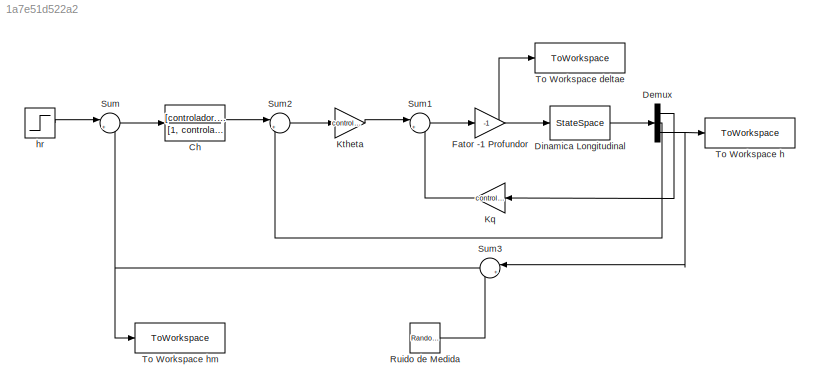
MODEL slx_1a7e51d522a2
KIND model
CONFIG AbsTol = auto
CONFIG EnableMultiTasking = off
CONFIG FixedStep = 1e-3
CONFIG MaxStep = auto
CONFIG MinStep = auto
CONFIG RelTol = 1e-3
CONFIG SampleTimeConstraint = Unconstrained
CONFIG SolverName = FixedStepAuto
CONFIG StartTime = 0.0
CONFIG StopTime = 30
BLOCK [TransferFcn] Ch
  Denominator = [1,  controlador.a]
  Numerator = [controlador.Kph + controlador.Kdh * controlador.a, controlador.Kph * controlador.a]
BLOCK [Demux] Demux
  Outputs = 3
BLOCK [StateSpace] Dinamica Longitudinal
  A = planta.A
  B = planta.B
  C = planta.C
  D = planta.D
  InitialCondition = 0
BLOCK [Gain] Fator -1 Profundor
  Gain = -1
BLOCK [Gain] Kq
  Gain = controlador.Kq
BLOCK [Gain] Ktheta
  Gain = controlador.Ktheta
BLOCK [RandomNumber] Ruido de Medida
  SampleTime = 1.0 / 100.0
  Variance = varh
BLOCK [Sum] Sum
  Inputs = |+-
BLOCK [Sum] Sum1
  Inputs = |+-
BLOCK [Sum] Sum2
  Inputs = |+-
BLOCK [Sum] Sum3
  Inputs = |++
  NameLocation = top
BLOCK [ToWorkspace] To Workspace deltae
  FixptAsFi = on
  MaxDataPoints = inf
  SampleTime = -1
  SaveFormat = Structure With Time
  VariableName = deltae
BLOCK [ToWorkspace] To Workspace h
  FixptAsFi = on
  MaxDataPoints = inf
  SampleTime = -1
  SaveFormat = Structure With Time
  VariableName = h
BLOCK [ToWorkspace] To Workspace hm
  FixptAsFi = on
  MaxDataPoints = inf
  SampleTime = -1
  SaveFormat = Structure With Time
  VariableName = hm
BLOCK [Step] hr
  After = hr
  SampleTime = 0
  Time = 0
LINE Ch:1 -> Sum2:1
LINE Demux:1 -> Kq:1
LINE Demux:2 -> Sum2:2
NET Demux:3 -> Sum3:1, To Workspace h:1
LINE Dinamica Longitudinal:1 -> Demux:1
NET Fator -1 Profundor:1 -> Dinamica Longitudinal:1, To Workspace deltae:1
LINE Kq:1 -> Sum1:2
LINE Ktheta:1 -> Sum1:1
LINE Ruido de Medida:1 -> Sum3:2
LINE Sum1:1 -> Fator -1 Profundor:1
LINE Sum2:1 -> Ktheta:1
NET Sum3:1 -> Sum:2, To Workspace hm:1
LINE Sum:1 -> Ch:1
LINE hr:1 -> Sum:1
note: NET lines group one-source signal fan-out (src -> all destinations, sorted); 1:1 wires keep LINE
